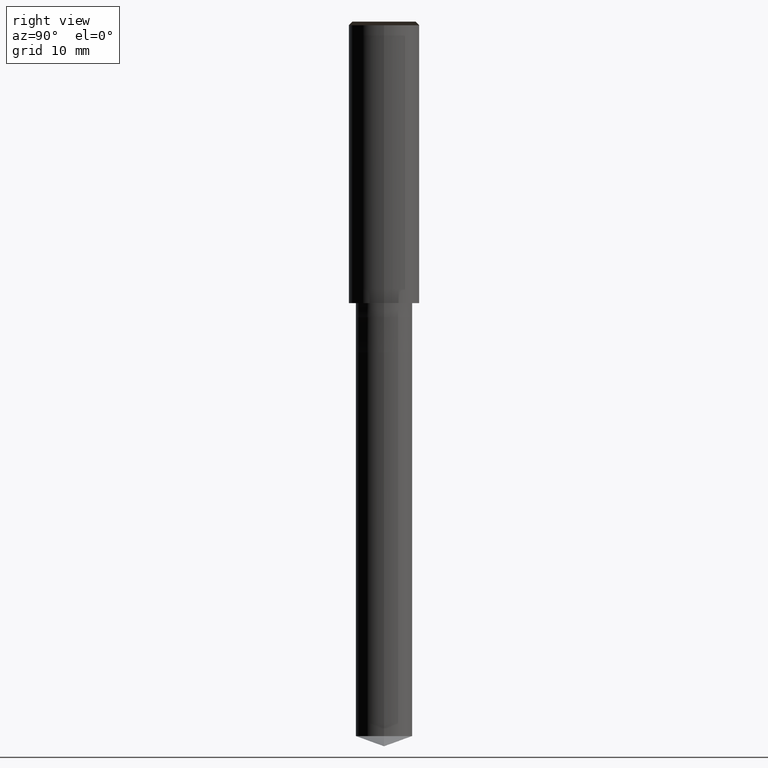
[diagram: clean part render]
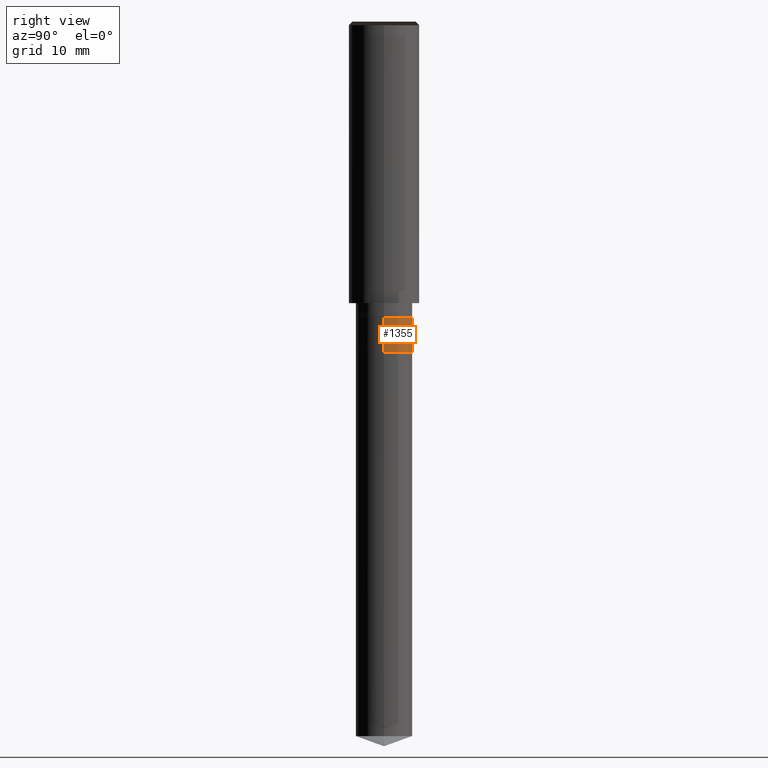
[diagram: same view with one face highlighted and labeled with its STEP entity id]
A machine part, right view. The second image highlights one B-rep face of the part: STEP entity #1355.
In plain terms, the highlighted face is a freeform B-spline surface patch.
Its self-contained STEP definition (entity closure, byte-faithful):
#1154=CARTESIAN_POINT('',(4.0,0.0,-7.0));
#1155=CARTESIAN_POINT('',(4.0,4.0,-7.0));
#1156=CARTESIAN_POINT('',(0.0,4.0,-7.0));
#1157=CARTESIAN_POINT('',(-4.0,4.0,-7.0));
#1158=CARTESIAN_POINT('',(-4.0,0.0,-7.0));
#1166=CARTESIAN_POINT('',(4.0,0.0,-2.0));
#1167=CARTESIAN_POINT('',(4.0,4.0,-2.0));
#1168=CARTESIAN_POINT('',(0.0,4.0,-2.0));
#1169=CARTESIAN_POINT('',(-4.0,4.0,-2.0));
#1170=CARTESIAN_POINT('',(-4.0,0.0,-2.0));
#1336=(
BOUNDED_SURFACE()
B_SPLINE_SURFACE(1,2,(
(#1154,#1155,#1156,#1157,#1158),
(#1166,#1167,#1168,#1169,#1170)
), .UNSPECIFIED.,.F.,.F.,.F.)
B_SPLINE_SURFACE_WITH_KNOTS((2,2),(3,2,3),(
0.0,1.0),(
0.0,0.5,1.0), .UNSPECIFIED.)
GEOMETRIC_REPRESENTATION_ITEM()
RATIONAL_B_SPLINE_SURFACE(((1.0,0.707106781187,1.0,0.707106781187,1.0),
(1.0,0.707106781187,1.0,0.707106781187,1.0)
))
REPRESENTATION_ITEM('')
SURFACE()
);
#1337=(
BOUNDED_CURVE()
B_SPLINE_CURVE(2,(#1158,#1157,#1156,#1155,#1154),.UNSPECIFIED.,.F.,.F.)
B_SPLINE_CURVE_WITH_KNOTS((3,2,3),
(0.0,0.5,1.0),.UNSPECIFIED.)
CURVE()
GEOMETRIC_REPRESENTATION_ITEM()
RATIONAL_B_SPLINE_CURVE((1.0,0.707106781187,1.0,0.707106781187,1.0))
REPRESENTATION_ITEM('')
);
#1338=(
BOUNDED_CURVE()
B_SPLINE_CURVE(1,(#1154,#1166),.UNSPECIFIED.,.F.,.F.)
B_SPLINE_CURVE_WITH_KNOTS((2,2),
(0.0,1.0),.UNSPECIFIED.)
CURVE()
GEOMETRIC_REPRESENTATION_ITEM()
RATIONAL_B_SPLINE_CURVE((1.0,1.0))
REPRESENTATION_ITEM('')
);
#1339=(
BOUNDED_CURVE()
B_SPLINE_CURVE(2,(#1166,#1167,#1168,#1169,#1170),.UNSPECIFIED.,.F.,.F.)
B_SPLINE_CURVE_WITH_KNOTS((3,2,3),
(0.0,0.5,1.0),.UNSPECIFIED.)
CURVE()
GEOMETRIC_REPRESENTATION_ITEM()
RATIONAL_B_SPLINE_CURVE((1.0,0.707106781187,1.0,0.707106781187,1.0))
REPRESENTATION_ITEM('')
);
#1340=(
BOUNDED_CURVE()
B_SPLINE_CURVE(1,(#1170,#1158),.UNSPECIFIED.,.F.,.F.)
B_SPLINE_CURVE_WITH_KNOTS((2,2),
(0.0,1.0),.UNSPECIFIED.)
CURVE()
GEOMETRIC_REPRESENTATION_ITEM()
RATIONAL_B_SPLINE_CURVE((1.0,1.0))
REPRESENTATION_ITEM('')
);
#1341=VERTEX_POINT('',#1154);
#1342=VERTEX_POINT('',#1158);
#1343=VERTEX_POINT('',#1166);
#1344=VERTEX_POINT('',#1170);
#1345=EDGE_CURVE('',#1342,#1341,#1337,.T.);
#1346=EDGE_CURVE('',#1341,#1343,#1338,.T.);
#1347=EDGE_CURVE('',#1343,#1344,#1339,.T.);
#1348=EDGE_CURVE('',#1344,#1342,#1340,.T.);
#1349=ORIENTED_EDGE('',*,*,#1345,.T.);
#1350=ORIENTED_EDGE('',*,*,#1346,.T.);
#1351=ORIENTED_EDGE('',*,*,#1347,.T.);
#1352=ORIENTED_EDGE('',*,*,#1348,.T.);
#1353=EDGE_LOOP('',(#1349,#1350,#1351,#1352));
#1354=FACE_OUTER_BOUND('',#1353,.T.);
#1355=ADVANCED_FACE('',(#1354),#1336,.T.);